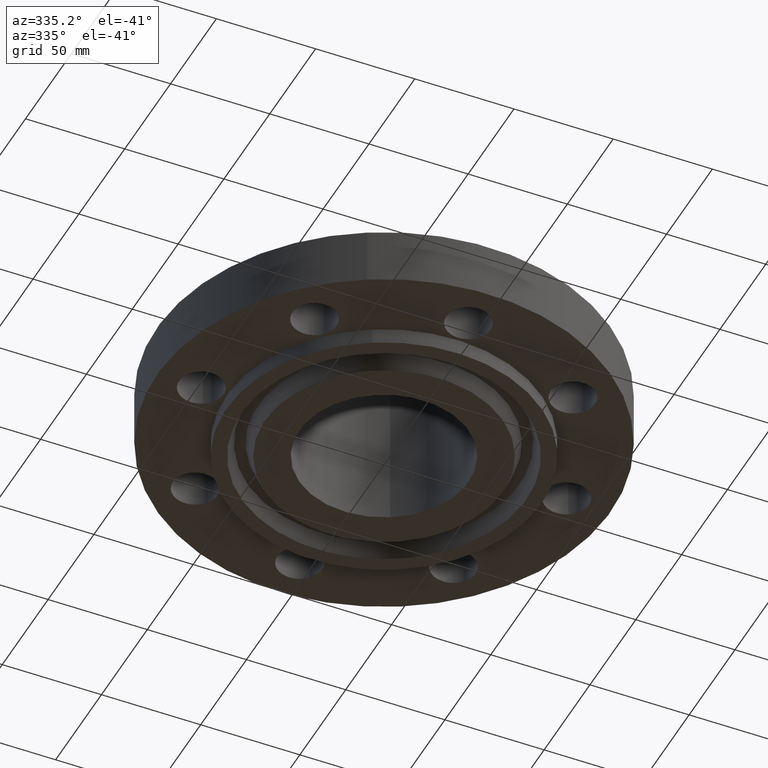
[diagram: clean part render]
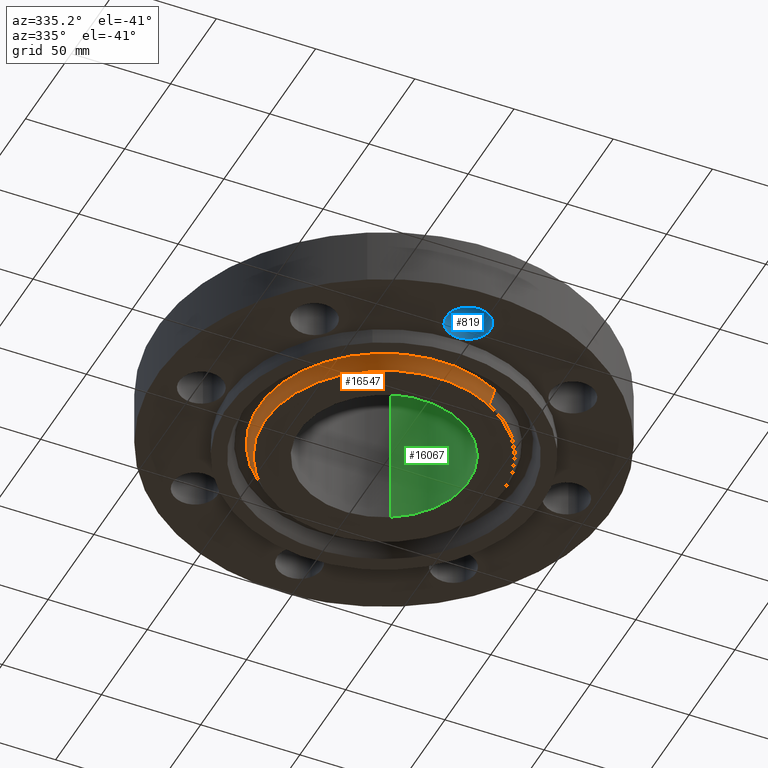
[diagram: same view with three faces highlighted in distinct colors, each labeled with its STEP entity id]
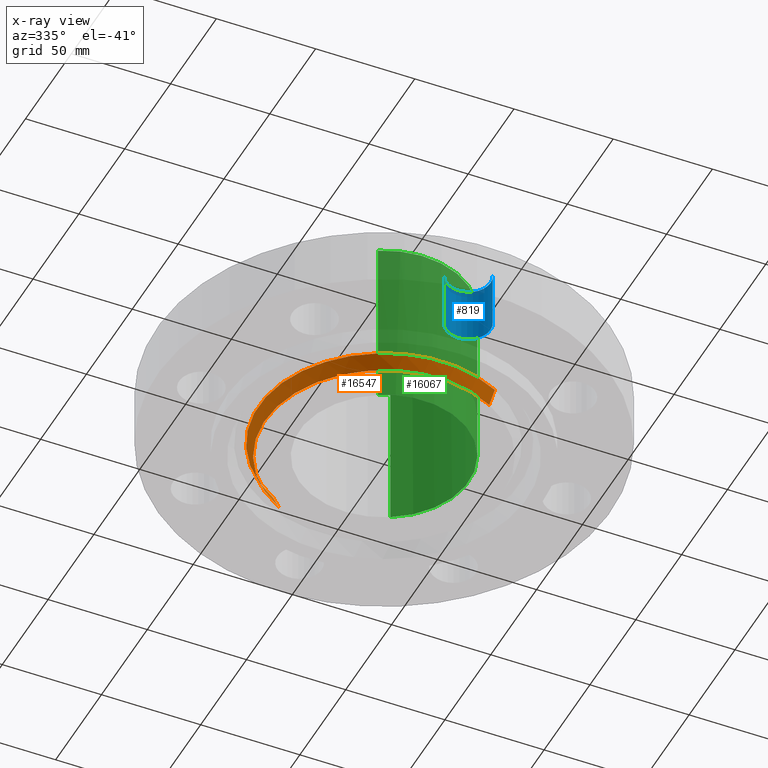
[diagram: x-ray of the same camera — body ghosted, the three highlighted faces saturated]
A machine part, auxiliary view with three faces highlighted in distinct colors.
The next image is the same camera in x-ray (body ghosted, the three faces saturated) — at least one of them is partly hidden behind the body in this view.
Their STEP definitions:

[orange] entity #16547 — the highlighted conical surface has half-angle 23 deg.
#15984=AXIS2_PLACEMENT_3D('Circle Axis2P3D',#15982,#15983,$) ;
#16534=AXIS2_PLACEMENT_3D('Cone Axis2P3D',#16531,#16532,#16533) ;
#16538=AXIS2_PLACEMENT_3D('Circle Axis2P3D',#16536,#16537,$) ;
#15948=CARTESIAN_POINT('Vertex',(1.19105768194,-2.18021646263,-0.0188873350179)) ;
#15955=CARTESIAN_POINT('Vertex',(-1.19105768194,2.18021646263,-0.0188873350185)) ;
#15982=CARTESIAN_POINT('Axis2P3D Location',(0.,0.,-0.0188873350179)) ;
#16498=CARTESIAN_POINT('Line Origine',(-1.16113112014,2.12543625871,-0.165943667508)) ;
#16502=CARTESIAN_POINT('Vertex',(-1.13120455838,2.0706560548,-0.313000000001)) ;
#16505=CARTESIAN_POINT('Line Origine',(1.16113112014,-2.12543625871,-0.165943667508)) ;
#16509=CARTESIAN_POINT('Vertex',(1.13120455838,-2.07065605475,-0.313000000001)) ;
#16531=CARTESIAN_POINT('Axis2P3D Location',(0.,0.,-0.373000000001)) ;
#16536=CARTESIAN_POINT('Axis2P3D Location',(0.,0.,-0.313000000002)) ;
#15983=DIRECTION('Axis2P3D Direction',(0.,0.,0.0393700787402)) ;
#16499=DIRECTION('Vector Direction',(-0.00737505833566,0.0134999537303,0.0362403485611)) ;
#16506=DIRECTION('Vector Direction',(0.00737505833566,-0.0134999537303,0.0362403485611)) ;
#16532=DIRECTION('Axis2P3D Direction',(0.,0.,0.0393700787402)) ;
#16533=DIRECTION('Axis2P3D XDirection',(-0.0188750212049,0.0345504945626,0.)) ;
#16537=DIRECTION('Axis2P3D Direction',(0.,0.,0.0393700787402)) ;
#16500=VECTOR('Line Direction',#16499,0.0393700787402) ;
#16507=VECTOR('Line Direction',#16506,0.0393700787402) ;
#16542=ORIENTED_EDGE('',*,*,#16511,.F.) ;
#16543=ORIENTED_EDGE('',*,*,#15986,.F.) ;
#16544=ORIENTED_EDGE('',*,*,#16504,.T.) ;
#16545=ORIENTED_EDGE('',*,*,#16540,.F.) ;
#16547=ADVANCED_FACE('PartBody',(#16546),#16535,.T.) ;
#15985=CIRCLE('generated circle',#15984,2.48434341942) ;
#16539=CIRCLE('generated circle',#16538,2.35950000001) ;
#16535=CONICAL_SURFACE('Cone',#16534,2.33403151104,0.401425727959) ;
#15986=EDGE_CURVE('',#15956,#15949,#15985,.T.) ;
#16504=EDGE_CURVE('',#15956,#16503,#16501,.F.) ;
#16511=EDGE_CURVE('',#15949,#16510,#16508,.F.) ;
#16540=EDGE_CURVE('',#16510,#16503,#16539,.F.) ;
#16541=EDGE_LOOP('',(#16542,#16543,#16544,#16545)) ;
#16546=FACE_OUTER_BOUND('',#16541,.T.) ;
#16501=LINE('Line',#16498,#16500) ;
#16508=LINE('Line',#16505,#16507) ;
#15949=VERTEX_POINT('',#15948) ;
#15956=VERTEX_POINT('',#15955) ;
#16503=VERTEX_POINT('',#16502) ;
#16510=VERTEX_POINT('',#16509) ;

[blue] entity #819 — the highlighted cylindrical surface (edge-blend (fillet) strip) has radius 11.176 mm, axis along (0, 0, -1).
#246=AXIS2_PLACEMENT_3D('Circle Axis2P3D',#244,#245,$) ;
#417=AXIS2_PLACEMENT_3D('Circle Axis2P3D',#415,#416,$) ;
#811=AXIS2_PLACEMENT_3D('Cylinder Axis2P3D',#808,#809,#810) ;
#239=CARTESIAN_POINT('Vertex',(0.386136327247,-3.83594723703,0.)) ;
#241=CARTESIAN_POINT('Vertex',(-0.386136327247,-3.41405276303,0.)) ;
#244=CARTESIAN_POINT('Axis2P3D Location',(1.74838271595E-017,-3.62500000003,0.)) ;
#415=CARTESIAN_POINT('Axis2P3D Location',(-6.99907323699E-012,-3.62500000003,1.12)) ;
#419=CARTESIAN_POINT('Vertex',(-0.386136327236,-3.41405276303,1.11999999999)) ;
#421=CARTESIAN_POINT('Vertex',(0.386136327233,-3.835947237,1.11999999999)) ;
#784=CARTESIAN_POINT('Line Origine',(0.386136327233,-3.835947237,0.56000000001)) ;
#789=CARTESIAN_POINT('Line Origine',(-0.386136327233,-3.41405276302,0.56000000001)) ;
#808=CARTESIAN_POINT('Axis2P3D Location',(4.43934464693E-016,-3.62500000001,1.11606299213)) ;
#245=DIRECTION('Axis2P3D Direction',(0.,0.,-0.0393700787402)) ;
#416=DIRECTION('Axis2P3D Direction',(0.,0.,-0.0393700787402)) ;
#785=DIRECTION('Vector Direction',(0.,0.,-0.0393700787402)) ;
#790=DIRECTION('Vector Direction',(0.,0.,-0.0393700787402)) ;
#809=DIRECTION('Axis2P3D Direction',(0.,0.,-0.0393700787402)) ;
#810=DIRECTION('Axis2P3D XDirection',(-0.0345504945626,0.0188750212049,0.)) ;
#786=VECTOR('Line Direction',#785,0.0393700787402) ;
#791=VECTOR('Line Direction',#790,0.0393700787402) ;
#814=ORIENTED_EDGE('',*,*,#793,.F.) ;
#815=ORIENTED_EDGE('',*,*,#248,.T.) ;
#816=ORIENTED_EDGE('',*,*,#788,.T.) ;
#817=ORIENTED_EDGE('',*,*,#423,.F.) ;
#819=ADVANCED_FACE('PartBody',(#818),#812,.F.) ;
#247=CIRCLE('generated circle',#246,0.44000000002) ;
#418=CIRCLE('generated circle',#417,0.440000000002) ;
#812=CYLINDRICAL_SURFACE('generated cylinder',#811,0.440000000002) ;
#248=EDGE_CURVE('',#242,#240,#247,.T.) ;
#423=EDGE_CURVE('',#420,#422,#418,.T.) ;
#788=EDGE_CURVE('',#240,#422,#787,.F.) ;
#793=EDGE_CURVE('',#242,#420,#792,.F.) ;
#813=EDGE_LOOP('',(#814,#815,#816,#817)) ;
#818=FACE_OUTER_BOUND('',#813,.T.) ;
#787=LINE('Line',#784,#786) ;
#792=LINE('Line',#789,#791) ;
#240=VERTEX_POINT('',#239) ;
#242=VERTEX_POINT('',#241) ;
#420=VERTEX_POINT('',#419) ;
#422=VERTEX_POINT('',#421) ;

[green] entity #16067 — the highlighted cylindrical surface (partial cylindrical patch) has radius 42.7228 mm, axis along (-0, 0, -1).
#5176=AXIS2_PLACEMENT_3D('Circle Axis2P3D',#5174,#5175,$) ;
#16042=AXIS2_PLACEMENT_3D('Cylinder Axis2P3D',#16039,#16040,#16041) ;
#5169=CARTESIAN_POINT('Vertex',(-0.806393755937,-1.4760938691,3.13000000001)) ;
#5171=CARTESIAN_POINT('Vertex',(0.806393755938,1.47609386911,3.13)) ;
#5174=CARTESIAN_POINT('Axis2P3D Location',(-1.28118688012E-011,2.43324520637E-011,3.13000000001)) ;
#16006=CARTESIAN_POINT('Line Origine',(-0.806393755938,-1.47609386911,1.40850000001)) ;
#16010=CARTESIAN_POINT('Vertex',(-0.806393755938,-1.47609386911,-0.312999999975)) ;
#16017=CARTESIAN_POINT('Vertex',(0.806393755937,1.47609386911,-0.313000000001)) ;
#16020=CARTESIAN_POINT('Line Origine',(0.806393755938,1.47609386911,1.40850000001)) ;
#16039=CARTESIAN_POINT('Axis2P3D Location',(0.,0.,1.40850000001)) ;
#16045=CARTESIAN_POINT('Control Point',(0.806393755938,1.47609386911,-0.313000000001)) ;
#16046=CARTESIAN_POINT('Control Point',(1.0382580387,1.34942583413,-0.313)) ;
#16047=CARTESIAN_POINT('Control Point',(1.24525111095,1.17723135369,-0.312999999998)) ;
#16048=CARTESIAN_POINT('Control Point',(1.41541385741,0.965985300977,-0.312999999997)) ;
#16049=CARTESIAN_POINT('Control Point',(1.66374113756,0.488154948086,-0.312999999995)) ;
#16050=CARTESIAN_POINT('Control Point',(1.71295377805,-0.0480972316092,-0.312999999992)) ;
#16051=CARTESIAN_POINT('Control Point',(1.6839034936,-0.317793979908,-0.312999999991)) ;
#16052=CARTESIAN_POINT('Control Point',(1.52162031457,-0.831264966444,-0.312999999988)) ;
#16053=CARTESIAN_POINT('Control Point',(1.17723135369,-1.24525111095,-0.312999999985)) ;
#16054=CARTESIAN_POINT('Control Point',(0.965985300979,-1.4154138574,-0.312999999984)) ;
#16055=CARTESIAN_POINT('Control Point',(0.488154948088,-1.66374113756,-0.312999999982)) ;
#16056=CARTESIAN_POINT('Control Point',(-0.0480972316076,-1.71295377805,-0.312999999979)) ;
#16057=CARTESIAN_POINT('Control Point',(-0.317793979907,-1.6839034936,-0.312999999978)) ;
#16058=CARTESIAN_POINT('Control Point',(-0.574529473175,-1.60276190409,-0.312999999976)) ;
#16059=CARTESIAN_POINT('Control Point',(-0.806393755935,-1.47609386911,-0.312999999975)) ;
#5175=DIRECTION('Axis2P3D Direction',(0.,0.,-0.0393700787402)) ;
#16007=DIRECTION('Vector Direction',(0.,0.,-0.0393700787402)) ;
#16021=DIRECTION('Vector Direction',(0.,0.,-0.0393700787402)) ;
#16040=DIRECTION('Axis2P3D Direction',(-0.,0.,-0.0393700787402)) ;
#16041=DIRECTION('Axis2P3D XDirection',(0.0188750212049,0.0345504945626,-0.)) ;
#16008=VECTOR('Line Direction',#16007,0.0393700787402) ;
#16022=VECTOR('Line Direction',#16021,0.0393700787402) ;
#16062=ORIENTED_EDGE('',*,*,#5178,.F.) ;
#16063=ORIENTED_EDGE('',*,*,#16024,.T.) ;
#16064=ORIENTED_EDGE('',*,*,#16060,.T.) ;
#16065=ORIENTED_EDGE('',*,*,#16012,.F.) ;
#16067=ADVANCED_FACE('PartBody',(#16066),#16043,.F.) ;
#16044=B_SPLINE_CURVE_WITH_KNOTS('',5,(#16045,#16046,#16047,#16048,#16049,#16050,#16051,#16052,#16053,#16054,#16055,#16056,#16057,#16058,#16059),.UNSPECIFIED.,.F.,.U.,(6,3,3,3,6),(-67.1088173108,-33.5544086554,0.,33.5544086554,67.1088173108),.UNSPECIFIED.) ;
#5177=CIRCLE('generated circle',#5176,1.68200000002) ;
#16043=CYLINDRICAL_SURFACE('generated cylinder',#16042,1.68200000001) ;
#5178=EDGE_CURVE('',#5172,#5170,#5177,.T.) ;
#16012=EDGE_CURVE('',#5170,#16011,#16009,.T.) ;
#16024=EDGE_CURVE('',#5172,#16018,#16023,.T.) ;
#16060=EDGE_CURVE('',#16018,#16011,#16044,.T.) ;
#16061=EDGE_LOOP('',(#16062,#16063,#16064,#16065)) ;
#16066=FACE_OUTER_BOUND('',#16061,.T.) ;
#16009=LINE('Line',#16006,#16008) ;
#16023=LINE('Line',#16020,#16022) ;
#5170=VERTEX_POINT('',#5169) ;
#5172=VERTEX_POINT('',#5171) ;
#16011=VERTEX_POINT('',#16010) ;
#16018=VERTEX_POINT('',#16017) ;